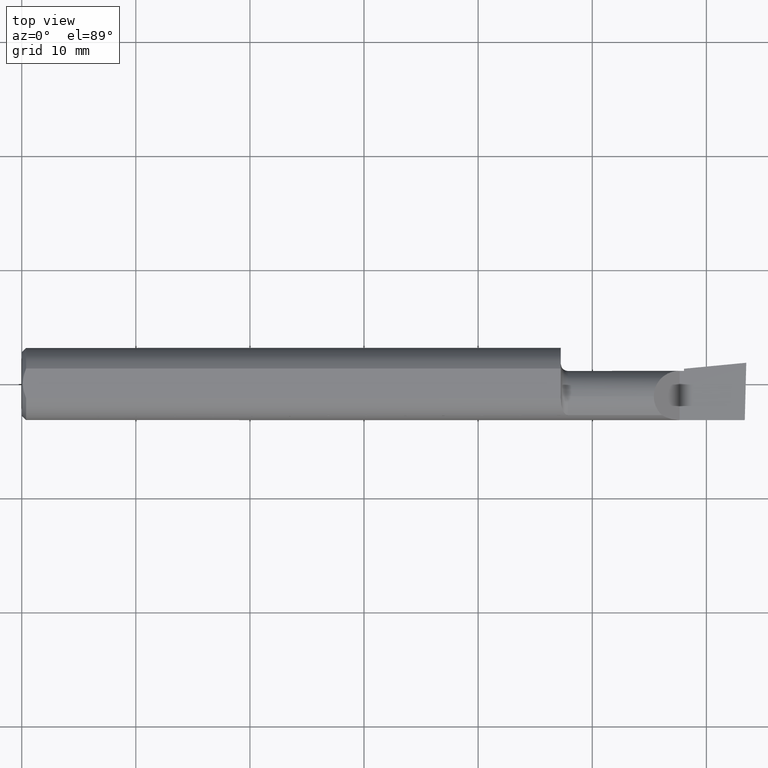
[diagram: clean part render]
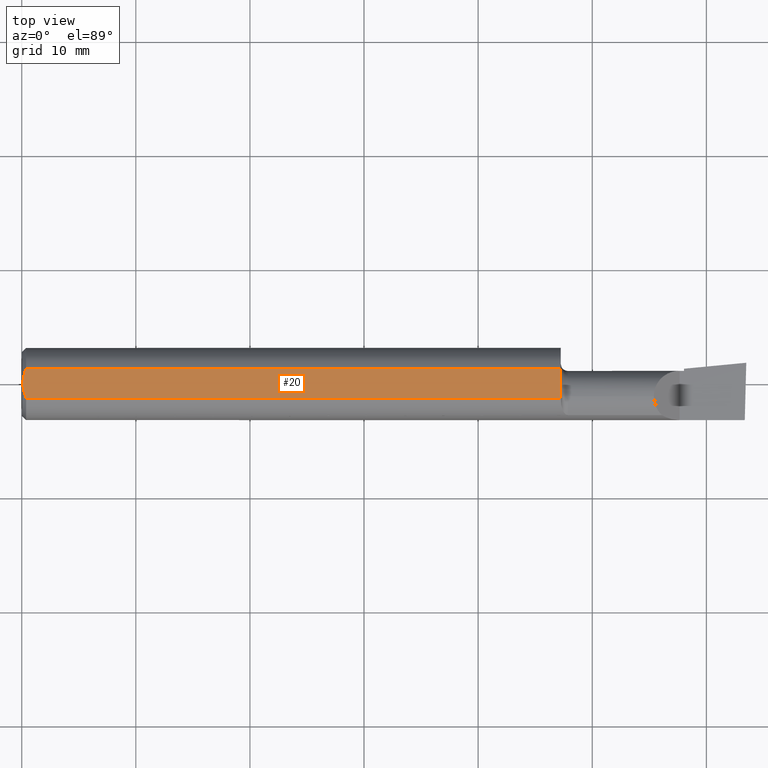
[diagram: same view with one face highlighted and labeled with its STEP entity id]
A machine part, top view. The second image highlights one B-rep face of the part: STEP entity #20.
In plain terms, the highlighted planar face has unit normal (0, -0, -1).
Its self-contained STEP definition (entity closure, byte-faithful):
#20 = ADVANCED_FACE ( 'NONE', ( #577 ), #621, .F. ) ;
#28 = CARTESIAN_POINT ( 'NONE',  ( 0.0000000000000000000, 0.05124158467494922820, 0.1138500000000000345 ) ) ;
#34 = CARTESIAN_POINT ( 'NONE',  ( 1.860001800064804423, -0.04399999999999999745, 0.1138500000000000345 ) ) ;
#37 = CARTESIAN_POINT ( 'NONE',  ( 0.0000000000000000000, -0.05124158467494919350, 0.1138500000000000345 ) ) ;
#43 = CARTESIAN_POINT ( 'NONE',  ( 1.860001800064805089, -0.04262160478489884080, 0.1138500000000000761 ) ) ;
#53 = ORIENTED_EDGE ( 'NONE', *, *, #231, .F. ) ;
#58 = LINE ( 'NONE', #450, #615 ) ;
#62 = DIRECTION ( 'NONE',  ( 0.0000000000000000000, -1.000000000000000000, 1.464745492742491612E-16 ) ) ;
#66 = CARTESIAN_POINT ( 'NONE',  ( 0.004000000000000278506, 1.406179932551309785E-17, 0.1138500000000000345 ) ) ;
#68 = CARTESIAN_POINT ( 'NONE',  ( 0.01168016970778672399, -0.04315282601121772643, 0.1138500000000000206 ) ) ;
#79 = VERTEX_POINT ( 'NONE', #321 ) ;
#108 = CARTESIAN_POINT ( 'NONE',  ( 1.859999999999999876, 0.05124158467494921432, 0.1138500000000000206 ) ) ;
#116 = ORIENTED_EDGE ( 'NONE', *, *, #526, .F. ) ;
#139 = CARTESIAN_POINT ( 'NONE',  ( 1.859999999999999876, -0.03572957074874710121, 0.1138500000000000345 ) ) ;
#169 = CARTESIAN_POINT ( 'NONE',  ( 0.01499999999999999424, 0.05124158467494922820, 0.1138500000000000345 ) ) ;
#174 = CARTESIAN_POINT ( 'NONE',  ( 0.005037769558486251270, -0.01754148797401016216, 0.1138500000000000206 ) ) ;
#176 = EDGE_LOOP ( 'NONE', ( #199, #718, #116, #53, #382, #610, #253 ) ) ;
#179 = VERTEX_POINT ( 'NONE', #267 ) ;
#181 = CARTESIAN_POINT ( 'NONE',  ( 0.004000000000000249016, -0.008832088689467585546, 0.1138500000000000484 ) ) ;
#188 = B_SPLINE_CURVE_WITH_KNOTS ( 'NONE', 3,
 ( #670, #68, #464, #174, #181, #579 ),
 .UNSPECIFIED., .F., .F.,
 ( 4, 2, 4 ),
 ( 0.0009713770995563920409, 0.001637314107522508866, 0.002303251115488625690 ),
 .UNSPECIFIED. ) ;
#199 = ORIENTED_EDGE ( 'NONE', *, *, #585, .F. ) ;
#231 = EDGE_CURVE ( 'NONE', #654, #179, #252, .T. ) ;
#245 = LINE ( 'NONE', #37, #643 ) ;
#252 = B_SPLINE_CURVE_WITH_KNOTS ( 'NONE', 3,
 ( #66, #288, #283, #350, #507, #169 ),
 .UNSPECIFIED., .F., .F.,
 ( 4, 2, 4 ),
 ( 0.002303251115488625690, 0.002969128157203607035, 0.003635005198918588379 ),
 .UNSPECIFIED. ) ;
#253 = ORIENTED_EDGE ( 'NONE', *, *, #446, .F. ) ;
#255 = CARTESIAN_POINT ( 'NONE',  ( 1.860001800064804423, -0.04399999999999999745, 0.1138500000000000345 ) ) ;
#260 = DIRECTION ( 'NONE',  ( -1.000000000000000000, -0.0000000000000000000, -0.0000000000000000000 ) ) ;
#267 = CARTESIAN_POINT ( 'NONE',  ( 0.01499999999999999424, 0.05124158467494922820, 0.1138500000000000345 ) ) ;
#270 = B_SPLINE_CURVE_WITH_KNOTS ( 'NONE', 3,
 ( #255, #588, #373, #475, #308 ),
 .UNSPECIFIED., .F., .F.,
 ( 4, 1, 4 ),
 ( 0.001183372309461725802, 0.001275293521177760930, 0.001367214732893796058 ),
 .UNSPECIFIED. ) ;
#283 = CARTESIAN_POINT ( 'NONE',  ( 0.005053359673950995161, 0.01761291720128071656, 0.1138500000000000484 ) ) ;
#288 = CARTESIAN_POINT ( 'NONE',  ( 0.004000000000000248149, 0.008831293378136255423, 0.1138500000000000345 ) ) ;
#292 = CARTESIAN_POINT ( 'NONE',  ( 2.500000000000000000, 0.1748500000000000609, 0.1138500000000000068 ) ) ;
#301 = EDGE_CURVE ( 'NONE', #702, #633, #58, .T. ) ;
#308 = CARTESIAN_POINT ( 'NONE',  ( 1.860000097795984519, -0.05124158467554382895, 0.1138500000000000345 ) ) ;
#321 = CARTESIAN_POINT ( 'NONE',  ( 0.01499999999999998730, -0.05124158467494919350, 0.1138500000000000345 ) ) ;
#350 = CARTESIAN_POINT ( 'NONE',  ( 0.008876515511621064711, 0.03469031959364226453, 0.1138500000000000206 ) ) ;
#351 = EDGE_CURVE ( 'NONE', #79, #654, #188, .T. ) ;
#355 = DIRECTION ( 'NONE',  ( 0.0000000000000000000, -1.464745492742491612E-16, -1.000000000000000000 ) ) ;
#373 = CARTESIAN_POINT ( 'NONE',  ( 1.860001294887845269, -0.04762079988859416885, 0.1138500000000000484 ) ) ;
#382 = ORIENTED_EDGE ( 'NONE', *, *, #351, .F. ) ;
#446 = EDGE_CURVE ( 'NONE', #466, #705, #270, .T. ) ;
#450 = CARTESIAN_POINT ( 'NONE',  ( 1.859999999999999876, 0.1748500000000000609, 0.1138500000000000068 ) ) ;
#464 = CARTESIAN_POINT ( 'NONE',  ( 0.008889541251485982148, -0.03475029298915140868, 0.1138500000000000484 ) ) ;
#466 = VERTEX_POINT ( 'NONE', #584 ) ;
#475 = CARTESIAN_POINT ( 'NONE',  ( 1.860000312090655639, -0.05003465832687906123, 0.1138500000000000761 ) ) ;
#487 = CARTESIAN_POINT ( 'NONE',  ( 0.004000000000000278506, 1.406179932551309785E-17, 0.1138500000000000345 ) ) ;
#490 = CARTESIAN_POINT ( 'NONE',  ( 1.860001123980412840, -0.03986479258532020509, 0.1138500000000000484 ) ) ;
#500 = CARTESIAN_POINT ( 'NONE',  ( 1.860000097795984519, -0.05124158467554382895, 0.1138500000000000345 ) ) ;
#507 = CARTESIAN_POINT ( 'NONE',  ( 0.01166851468367537115, 0.04312442857252158507, 0.1138500000000000345 ) ) ;
#526 = EDGE_CURVE ( 'NONE', #179, #702, #710, .T. ) ;
#533 = DIRECTION ( 'NONE',  ( 1.000000000000000000, 0.0000000000000000000, 0.0000000000000000000 ) ) ;
#568 = VECTOR ( 'NONE', #533, 39.37007874015748143 ) ;
#577 = FACE_OUTER_BOUND ( 'NONE', #176, .T. ) ;
#579 = CARTESIAN_POINT ( 'NONE',  ( 0.004000000000000278506, 1.406179932551309785E-17, 0.1138500000000000345 ) ) ;
#584 = CARTESIAN_POINT ( 'NONE',  ( 1.860001800064804423, -0.04399999999999999745, 0.1138500000000000345 ) ) ;
#585 = EDGE_CURVE ( 'NONE', #633, #466, #647, .T. ) ;
#588 = CARTESIAN_POINT ( 'NONE',  ( 1.860001800064804200, -0.04520694029916792755, 0.1138500000000000206 ) ) ;
#591 = EDGE_CURVE ( 'NONE', #705, #79, #245, .T. ) ;
#595 = CARTESIAN_POINT ( 'NONE',  ( 1.859999999999999654, -0.03710796596384828561, 0.1138500000000000206 ) ) ;
#610 = ORIENTED_EDGE ( 'NONE', *, *, #591, .F. ) ;
#614 = DIRECTION ( 'NONE',  ( 0.0000000000000000000, 1.000000000000000000, -1.464745492742491612E-16 ) ) ;
#615 = VECTOR ( 'NONE', #62, 39.37007874015748143 ) ;
#621 = PLANE ( 'NONE',  #704 ) ;
#633 = VERTEX_POINT ( 'NONE', #646 ) ;
#643 = VECTOR ( 'NONE', #260, 39.37007874015748143 ) ;
#646 = CARTESIAN_POINT ( 'NONE',  ( 1.859999999999999876, -0.03572957074874710121, 0.1138500000000000345 ) ) ;
#647 = B_SPLINE_CURVE_WITH_KNOTS ( 'NONE', 3,
 ( #139, #595, #490, #43, #34 ),
 .UNSPECIFIED., .F., .F.,
 ( 4, 1, 4 ),
 ( 0.0009734136918183574965, 0.001078393000640041595, 0.001183372309461725802 ),
 .UNSPECIFIED. ) ;
#654 = VERTEX_POINT ( 'NONE', #487 ) ;
#670 = CARTESIAN_POINT ( 'NONE',  ( 0.01499999999999998730, -0.05124158467494919350, 0.1138500000000000345 ) ) ;
#702 = VERTEX_POINT ( 'NONE', #108 ) ;
#704 = AXIS2_PLACEMENT_3D ( 'NONE', #292, #355, #614 ) ;
#705 = VERTEX_POINT ( 'NONE', #500 ) ;
#710 = LINE ( 'NONE', #28, #568 ) ;
#718 = ORIENTED_EDGE ( 'NONE', *, *, #301, .F. ) ;